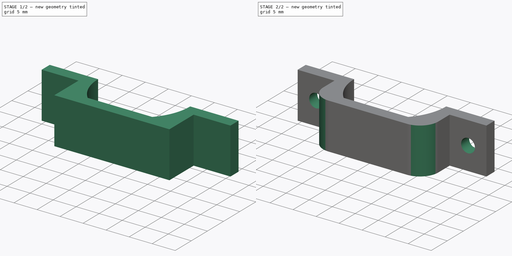
[diagram: build sequence overview — one tinted view per stage of 2, left to right]
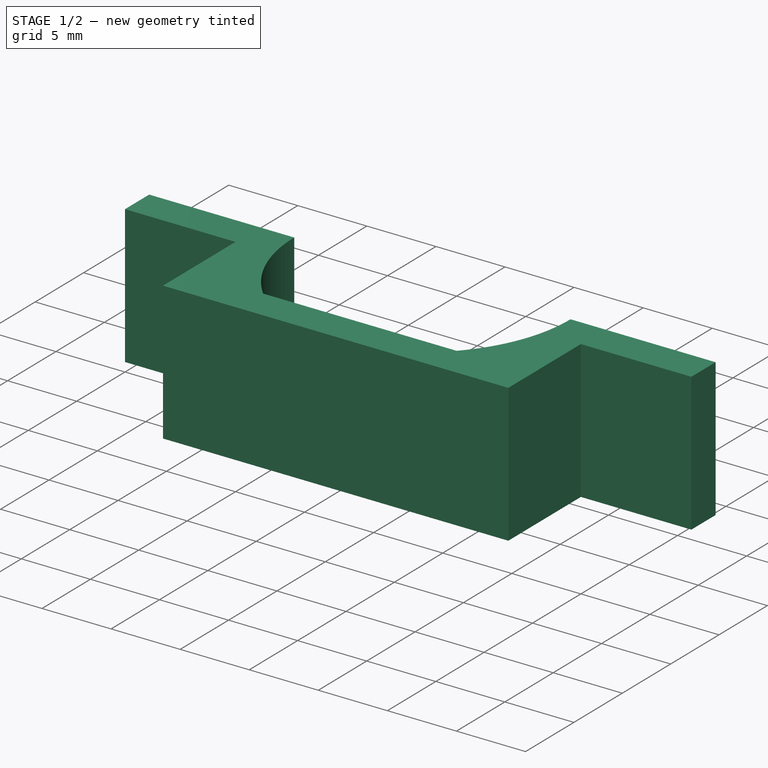
[diagram: stage 1 of 2 — iso view after this stage's code; geometry added in this stage tinted green]
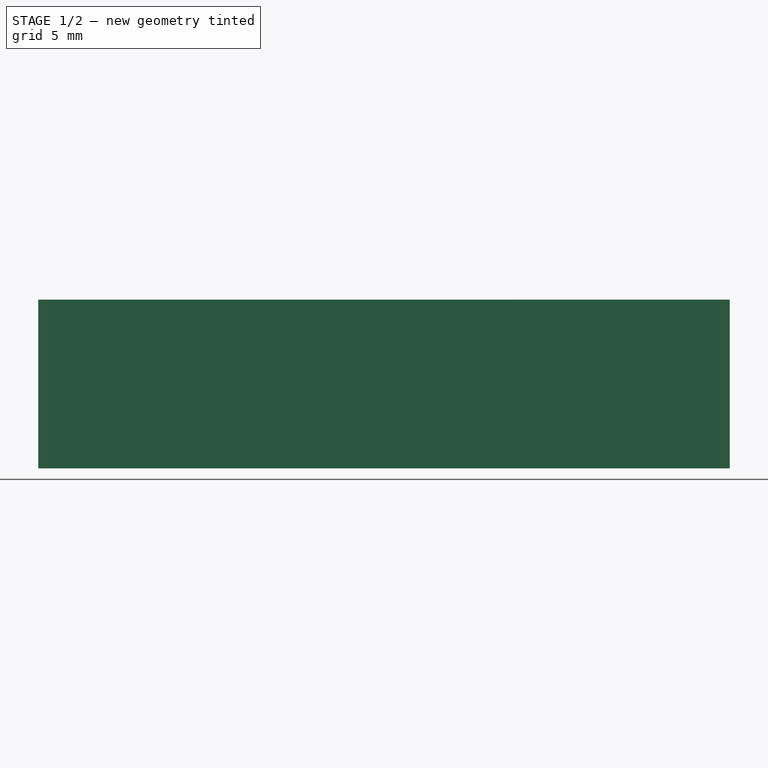
[diagram: stage 1 of 2 — front view after this stage's code; geometry added in this stage tinted green]
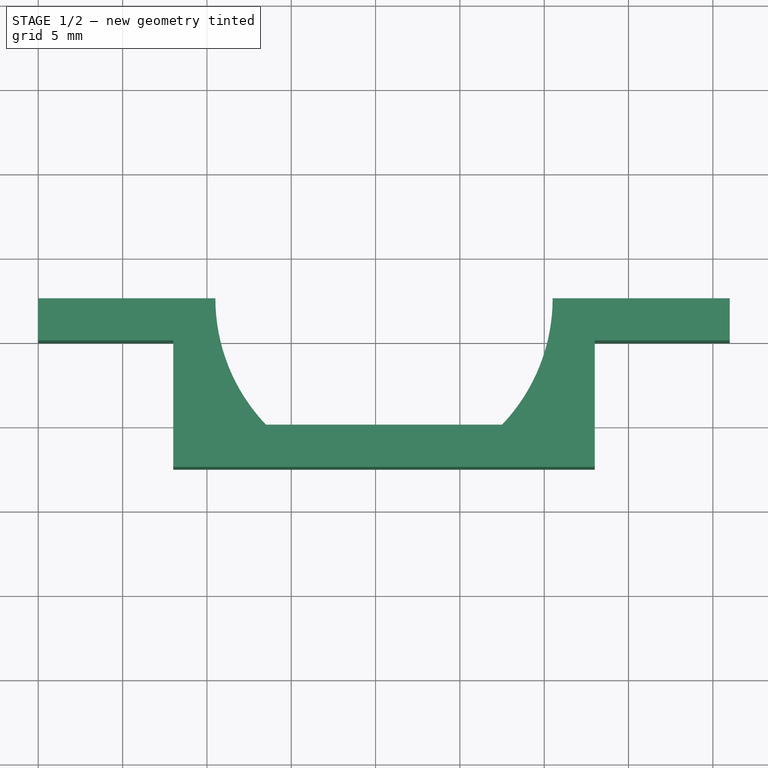
[diagram: stage 1 of 2 — top view after this stage's code; geometry added in this stage tinted green]
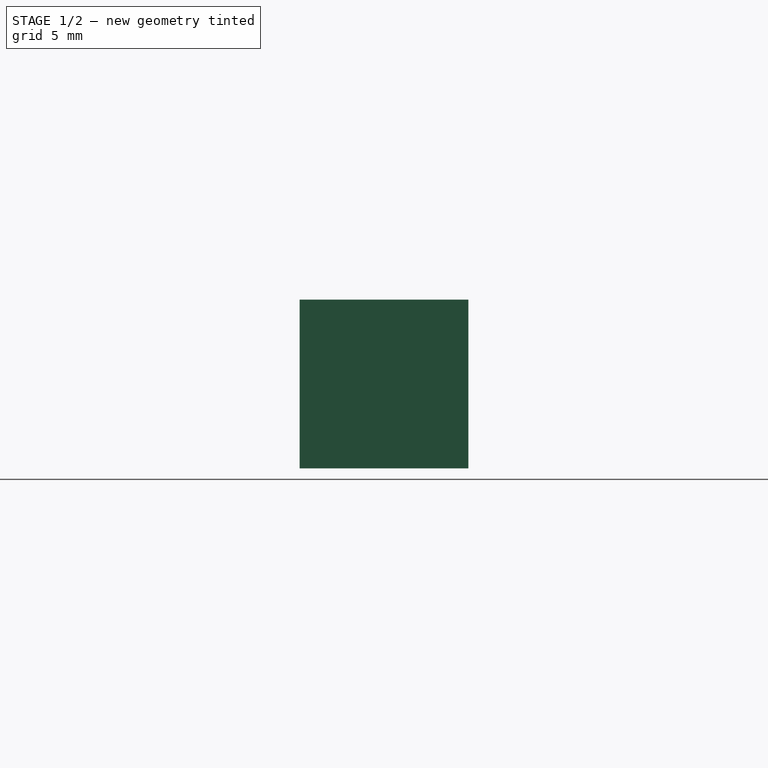
[diagram: stage 1 of 2 — right view after this stage's code; geometry added in this stage tinted green]
FCSTD DOCUMENT  (FreeCAD 1.0R39109 (Git))
Label: Motor-Buegel-DerGerät
License: All rights reserved
LicenseURL: https://en.wikipedia.org/wiki/All_rights_reserved
objects: Sketcher::SketchObject×3, PartDesign::Pad×2, PartDesign::Pocket×1, PartDesign::Fillet×1, PartDesign::Body×1
note: 19 computed .brp shape members not serialized (recipe doc carries the construction recipe); baked Part::Feature solids carry a one-line shape summary decoded from their .brp

FEATURE [Sketcher::SketchObject] Sketch
  ArcFitTolerance = 1e-06
  AttachmentSupport = -> [XY_Plane]
  FullyConstrained = true
  MakeInternals = false
  MapMode = 5
  sketch-geometry (14):
    g0: ArcOfCircle CenterX=21.375 CenterY=12.5 CenterZ=0 NormalX=0 NormalY=0 NormalZ=1 AngleXU=0 Radius=10.875 StartAngle=3.14159 EndAngle=3.90261
    g1: ArcOfCircle CenterX=19.625 CenterY=12.5 CenterZ=0 NormalX=0 NormalY=0 NormalZ=1 AngleXU=0 Radius=10.875 StartAngle=5.52217 EndAngle=6.28319
    g2: LineSegment StartX=13.5 StartY=5 StartZ=0 EndX=27.5 EndY=5 EndZ=0
    g3: LineSegment [constr] StartX=13.5 StartY=5 StartZ=0 EndX=13.5 EndY=15 EndZ=0
    g4: LineSegment [constr] StartX=27.5 StartY=5 StartZ=0 EndX=27.5 EndY=15 EndZ=0
    g5: LineSegment [constr] StartX=10.5 StartY=12.5 StartZ=0 EndX=30.5 EndY=12.5 EndZ=0
    g6: LineSegment StartX=10.5 StartY=12.5 StartZ=0 EndX=8 EndY=12.5 EndZ=0
    g7: LineSegment StartX=8 StartY=10 StartZ=0 EndX=8 EndY=2.5 EndZ=0
    g8: LineSegment StartX=8 StartY=2.5 StartZ=0 EndX=33 EndY=2.5 EndZ=0
    g9: LineSegment StartX=33 StartY=2.5 StartZ=0 EndX=33 EndY=12.5 EndZ=0
    g10: LineSegment StartX=33 StartY=12.5 StartZ=0 EndX=30.5 EndY=12.5 EndZ=0
    g11: LineSegment StartX=8 StartY=12.5 StartZ=0 EndX=0 EndY=12.5 EndZ=0
    g12: LineSegment StartX=0 StartY=12.5 StartZ=0 EndX=0 EndY=10 EndZ=0
    g13: LineSegment StartX=0 StartY=10 StartZ=0 EndX=8 EndY=10 EndZ=0
  constraints (43):
    c: Coincident(g2,g0)
    c: Coincident(g2,g1)
    c: Horizontal(g2)
    c: Distance(g3) = 10
    c: Vertical(g3)
    c: Coincident(g3,g0)
    c: Distance(g4) = 10
    c: Vertical(g4)
    c: Coincident(g4,g1)
    c: Distance(g1,g4) = -3
    c: Distance(g0,g3) = -3
    c: Distance(g0,g2) = 7.5
    c: Distance(g1,g2) = 7.5
    c: Coincident(g5,g0)
    c: Coincident(g5,g1)
    c: PointOnObject(g1,g5)
    c: PointOnObject(g0,g5)
    c: Coincident(g0,g6)
    c: Vertical(g7)
    c: Coincident(g7,g8)
    c: Horizontal(g8)
    c: Coincident(g8,g9)
    c: Vertical(g9)
    c: Coincident(g10,g1)
    c: Horizontal(g10)
    c: Equal(g10,g6)
    c: Horizontal(g6)
    c: Distance(g8,g2) = 2.5
    c: DistanceX(g10,g10) = 2.5
    c: DistanceX(g2,g2) = 14
    c: Coincident(g11,g12)
    c: Coincident(g12,g13)
    c: Horizontal(g11)
    c: Horizontal(g13)
    c: Vertical(g12)
    c: Distance(g12,g11) = 8
    c: Distance(g11,g13) = 2.5
    c: Coincident(g11,g6)
    c: PointOnObject(g12,g-2)
    c: Distance(g12,g-1) = 10
    c: Coincident(g7,g13)
    c: Vertical(g6,g7)
    c: Coincident(g9,g10)
FEATURE [PartDesign::Pad] Pad
  Direction = (0,0,1)
  Length = 10
  Length2 = 10
  Profile = -> Sketch
  ReferenceAxis = -> Sketch [N_Axis]
  Refine = true
  Suppressed = false
  Type = 0
FEATURE [Sketcher::SketchObject] Sketch001
  ArcFitTolerance = 1e-06
  AttachmentSupport = -> [Pad]
  ExternalGeometry = -> [Pad]
  FullyConstrained = true
  MakeInternals = false
  MapMode = 5
  Placement = pos=(33,0,0) rot=(0.57735,0.57735,0.57735;2.0944rad)
  sketch-geometry (4):
    g0: LineSegment StartX=12.5 StartY=0 StartZ=0 EndX=12.5 EndY=10 EndZ=0
    g1: LineSegment StartX=12.5 StartY=10 StartZ=0 EndX=10 EndY=10 EndZ=0
    g2: LineSegment StartX=10 StartY=10 StartZ=0 EndX=10 EndY=0 EndZ=0
    g3: LineSegment StartX=10 StartY=0 StartZ=0 EndX=12.5 EndY=0 EndZ=0
  constraints (11):
    c: Coincident(g0,g1)
    c: Coincident(g1,g2)
    c: Coincident(g2,g3)
    c: Coincident(g3,g0)
    c: Vertical(g0)
    c: Vertical(g2)
    c: Horizontal(g1)
    c: Horizontal(g3)
    c: Distance(g0,g2) = 2.5
    c: Distance(g1,g3) = 10
    c: Coincident(g0,g-3)
FEATURE [PartDesign::Pad] Pad001
  BaseFeature = -> Pad
  Direction = (1,0,0)
  Length = 8
  Length2 = 10
  Profile = -> Sketch001
  ReferenceAxis = -> Sketch001 [N_Axis]
  Refine = true
  Suppressed = false
  Type = 0
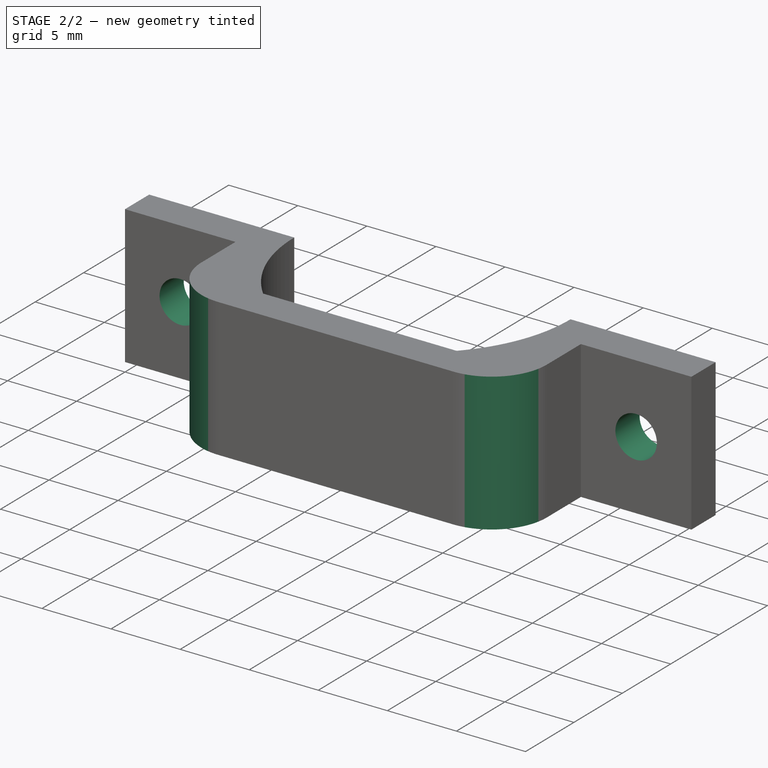
[diagram: stage 2 of 2 — iso view after this stage's code; geometry added in this stage tinted green]
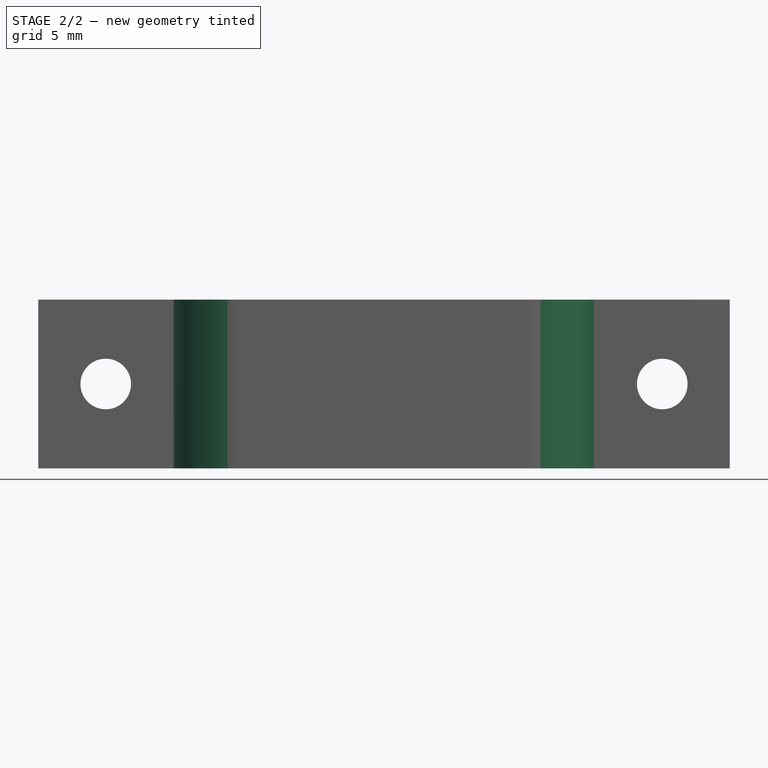
[diagram: stage 2 of 2 — front view after this stage's code; geometry added in this stage tinted green]
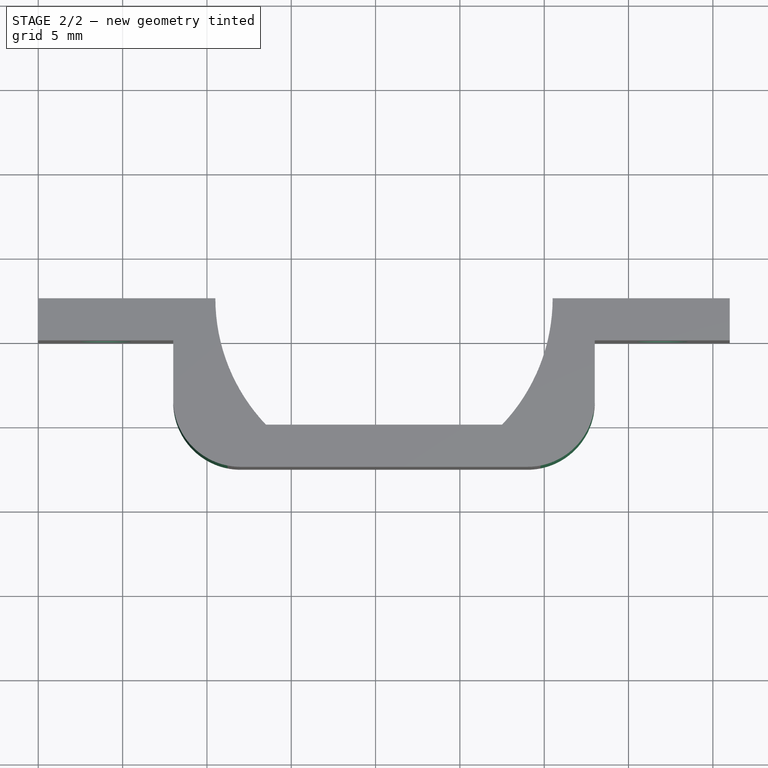
[diagram: stage 2 of 2 — top view after this stage's code; geometry added in this stage tinted green]
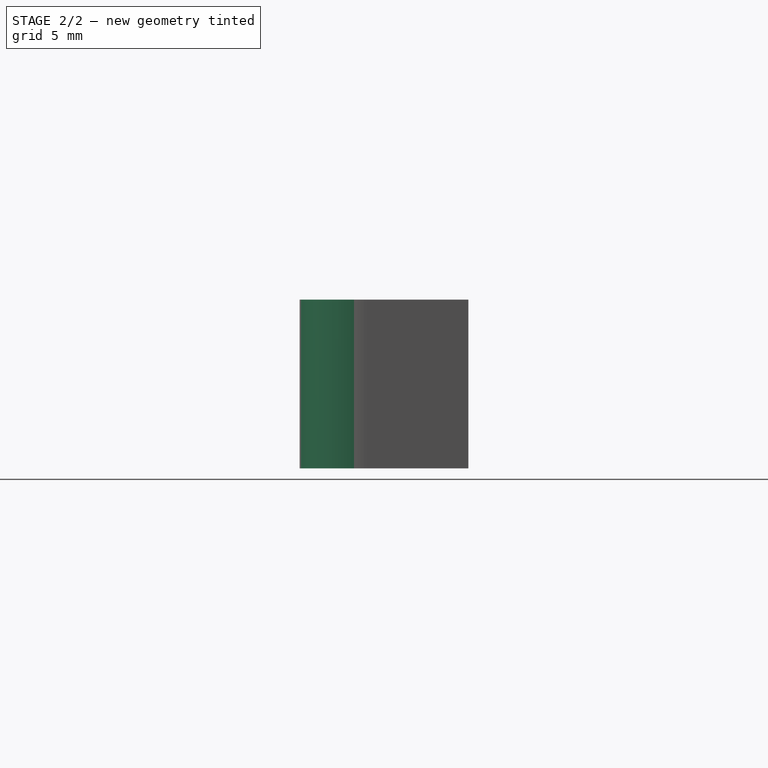
[diagram: stage 2 of 2 — right view after this stage's code; geometry added in this stage tinted green]
FEATURE [Sketcher::SketchObject] Sketch002
  ArcFitTolerance = 1e-06
  AttachmentSupport = -> [Pad001]
  ExternalGeometry = -> [Pad001]
  FullyConstrained = true
  MakeInternals = false
  MapMode = 5
  Placement = pos=(0,10,0) rot=(1,0,0;1.5708rad)
  sketch-geometry (4):
    g0: LineSegment [constr] StartX=0 StartY=0 StartZ=0 EndX=8 EndY=10 EndZ=0
    g1: LineSegment [constr] StartX=33 StartY=-1.7e-15 StartZ=0 EndX=41 EndY=10 EndZ=0
    g2: Circle CenterX=4 CenterY=5 CenterZ=0 NormalX=0 NormalY=0 NormalZ=1 AngleXU=0 Radius=1.5
    g3: Circle CenterX=37 CenterY=5 CenterZ=0 NormalX=0 NormalY=0 NormalZ=1 AngleXU=0 Radius=1.5
  constraints (8):
    c: Coincident(g0,g-1)
    c: Coincident(g0,g-5)
    c: Coincident(g1,g-4)
    c: Coincident(g1,g-3)
    c: Diameter(g2) = 3
    c: Symmetric(g0,g0,g2)
    c: Diameter(g3) = 3
    c: Symmetric(g1,g1,g3)
FEATURE [PartDesign::Pocket] Pocket
  BaseFeature = -> Pad001
  Direction = (0,1,-2e-16)
  Length = 5
  Length2 = 5
  Profile = -> Sketch002
  ReferenceAxis = -> Sketch002 [N_Axis]
  Refine = true
  Suppressed = false
  Type = 1
FEATURE [PartDesign::Fillet] Fillet
  Base = -> Pocket [Edge40,Edge39]
  BaseFeature = -> Pocket
  Radius = 4
  Refine = true
  SupportTransform = false
  Suppressed = false
  UseAllEdges = false
FEATURE [PartDesign::Body] Body  label="Körper"
  AllowCompound = false
  Group = -> [Sketch,Pad,Sketch001,Pad001,Sketch002,Pocket,Fillet]
  Origin = -> Origin
  Tip = -> Fillet
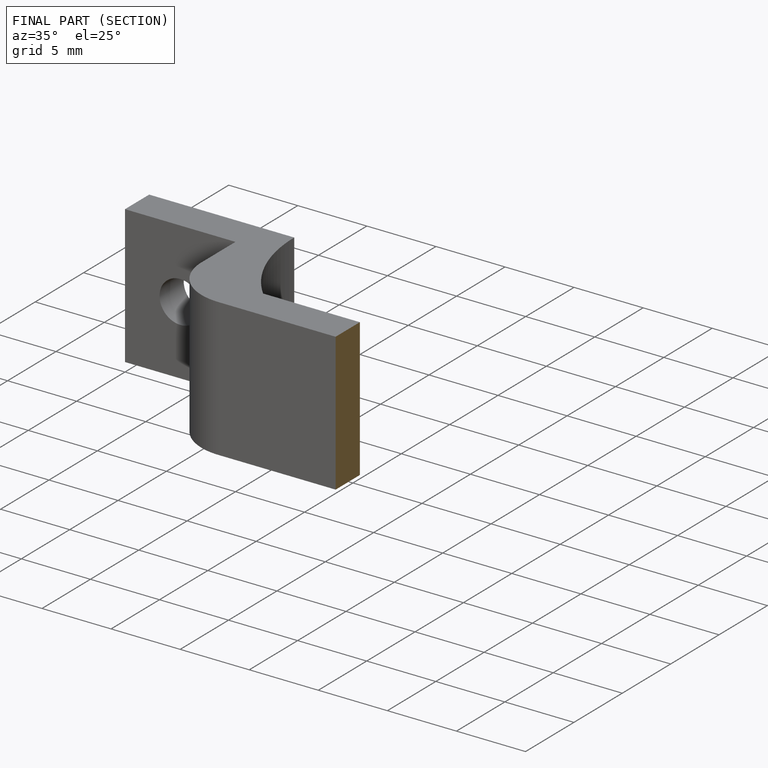
[diagram: finished part — half-section view (interior)]
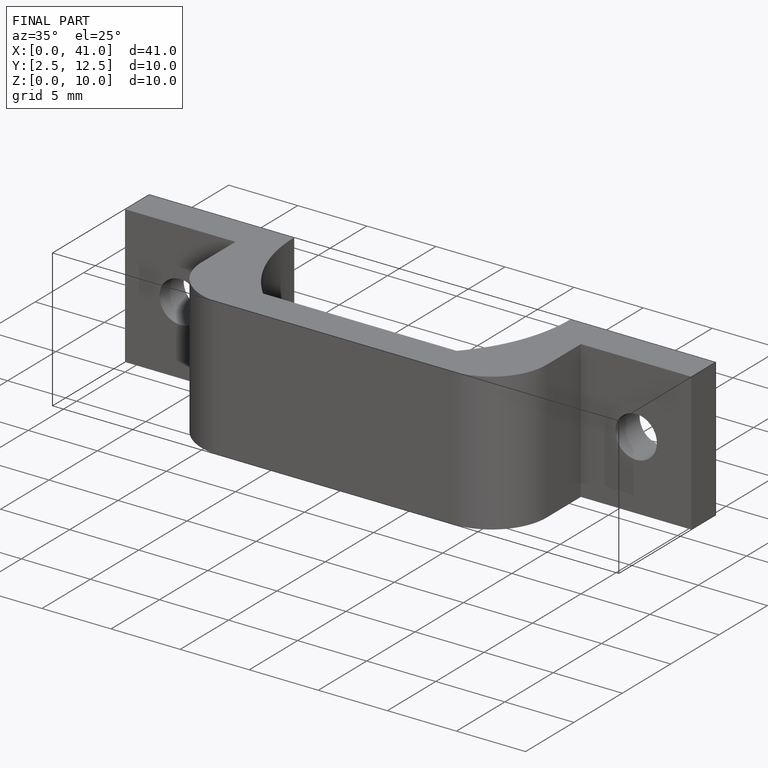
[diagram: finished part — iso view with bounding-box wireframe]
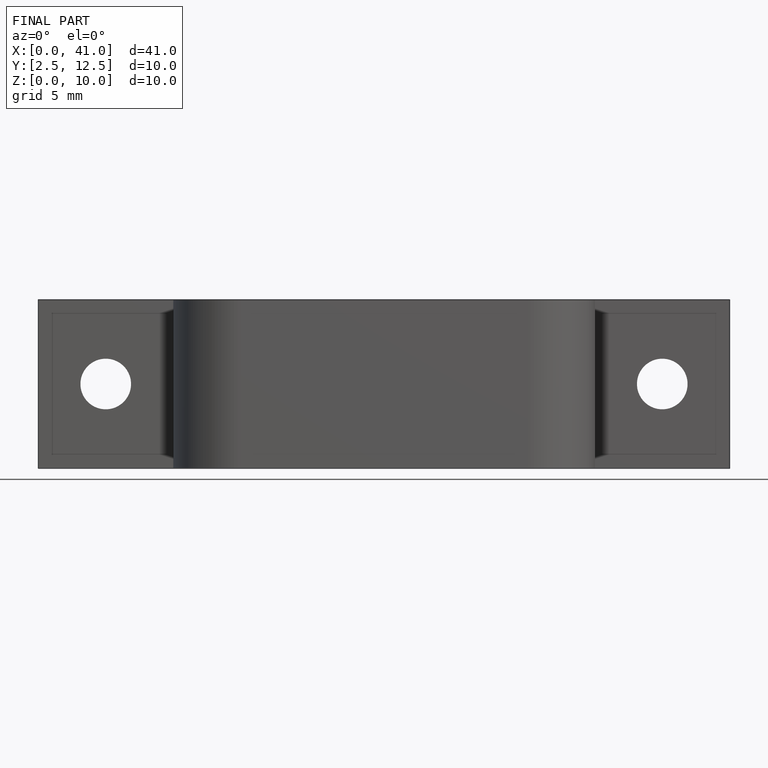
[diagram: finished part — front view with bounding-box wireframe]
